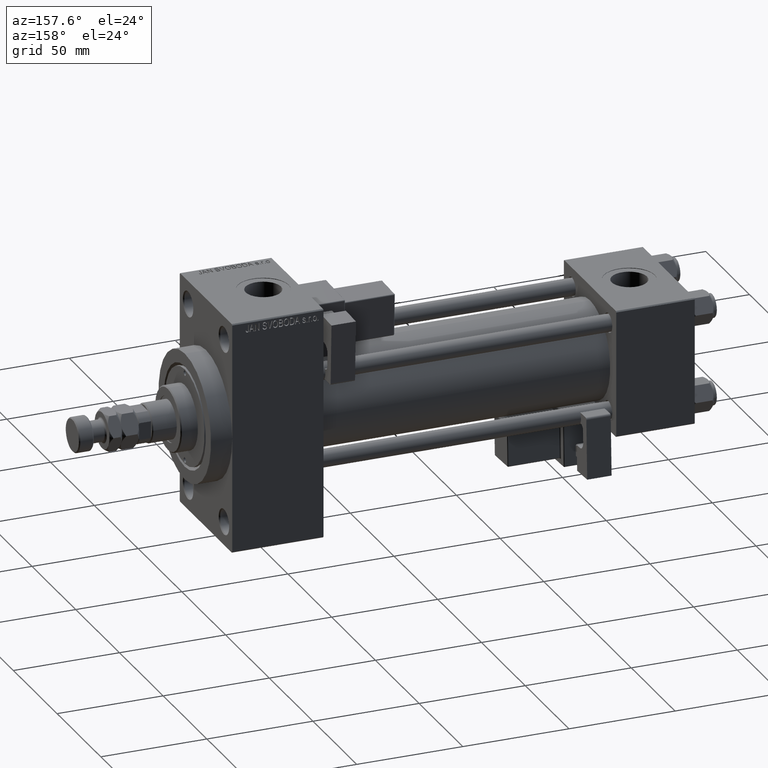
[diagram: clean part render]
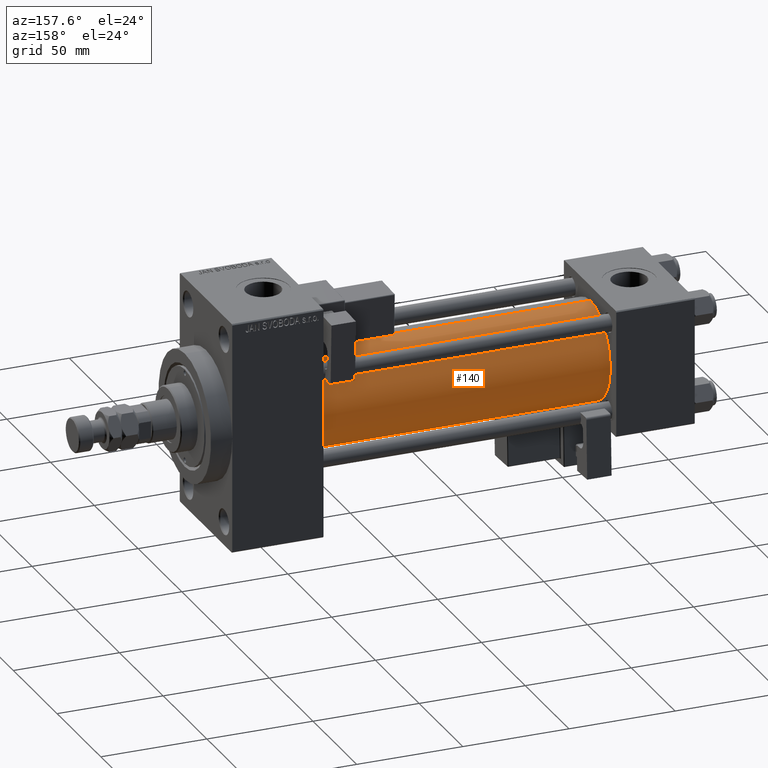
[diagram: same view with one face highlighted and labeled with its STEP entity id]
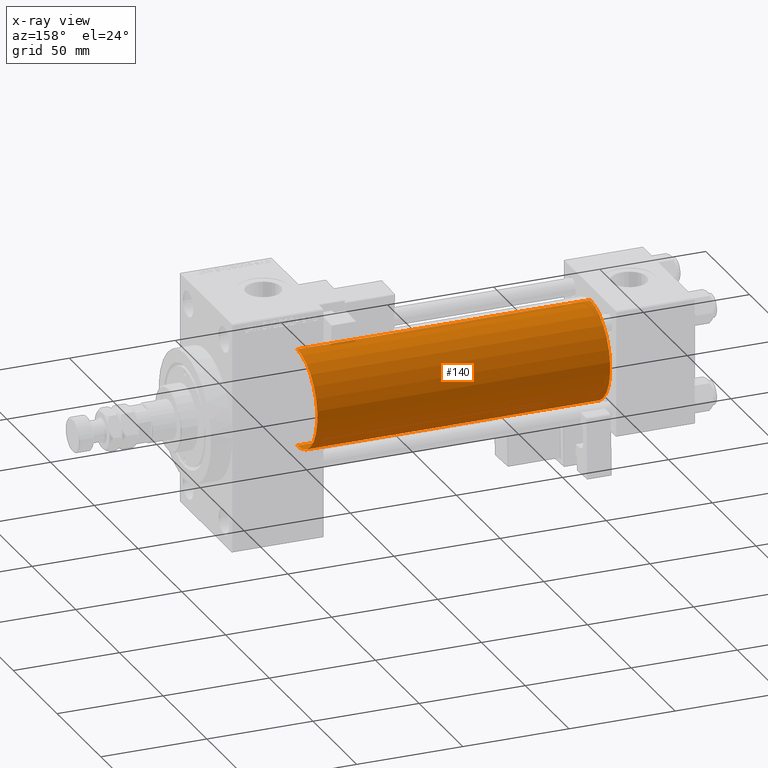
[diagram: x-ray of the same camera — body ghosted, the highlighted face saturated]
A machine part, auxiliary view. The second image highlights one B-rep face of the part: STEP entity #140.
The next image is the same camera in x-ray: the body ghosted, the highlighted face saturated — about 0% of this face is hidden behind the body in this view.
In plain terms, the highlighted cylindrical surface (partial cylindrical patch) has radius 23 mm, axis along (-1, -0, -0).
Its self-contained STEP definition (entity closure, byte-faithful):
#140 = ADVANCED_FACE ( 'NONE', ( #1338 ), #33481, .T. ) ;
#1070 = DIRECTION ( 'NONE',  ( 1.000000000000000000, -0.000000000000000000, 0.000000000000000000 ) ) ;
#1338 = FACE_OUTER_BOUND ( 'NONE', #37229, .T. ) ;
#1544 = AXIS2_PLACEMENT_3D ( 'NONE', #49313, #25456, #16912 ) ;
#2052 = ORIENTED_EDGE ( 'NONE', *, *, #3572, .T. ) ;
#2957 = CARTESIAN_POINT ( 'NONE',  ( 175.0000000000000284, 2.146024240737016609E-16, -23.00000000000000000 ) ) ;
#3572 = EDGE_CURVE ( 'NONE', #50023, #18628, #37240, .T. ) ;
#4857 = CARTESIAN_POINT ( 'NONE',  ( 37.00000000000000711, -2.602085213965210642E-15, 23.00000000000000000 ) ) ;
#9815 = DIRECTION ( 'NONE',  ( 0.000000000000000000, 0.000000000000000000, -1.000000000000000000 ) ) ;
#9831 = VECTOR ( 'NONE', #32445, 1000.000000000000000 ) ;
#10270 = DIRECTION ( 'NONE',  ( -1.000000000000000000, -0.000000000000000000, -0.000000000000000000 ) ) ;
#11702 = EDGE_CURVE ( 'NONE', #23365, #50023, #21927, .T. ) ;
#13746 = EDGE_CURVE ( 'NONE', #18752, #18628, #31683, .T. ) ;
#16912 = DIRECTION ( 'NONE',  ( 0.000000000000000000, 0.000000000000000000, 1.000000000000000000 ) ) ;
#18628 = VERTEX_POINT ( 'NONE', #4857 ) ;
#18752 = VERTEX_POINT ( 'NONE', #23489 ) ;
#20774 = DIRECTION ( 'NONE',  ( 1.000000000000000000, 0.000000000000000000, 0.000000000000000000 ) ) ;
#21526 = AXIS2_PLACEMENT_3D ( 'NONE', #33463, #1070, #36582 ) ;
#21927 = LINE ( 'NONE', #45785, #49506 ) ;
#23365 = VERTEX_POINT ( 'NONE', #2957 ) ;
#23393 = CARTESIAN_POINT ( 'NONE',  ( 175.0000000000000284, -2.602085213965210642E-15, 23.00000000000000000 ) ) ;
#23489 = CARTESIAN_POINT ( 'NONE',  ( 175.0000000000000284, -2.602085213965210642E-15, 23.00000000000000000 ) ) ;
#25456 = DIRECTION ( 'NONE',  ( -1.000000000000000000, -0.000000000000000000, -0.000000000000000000 ) ) ;
#25570 = ORIENTED_EDGE ( 'NONE', *, *, #37402, .F. ) ;
#26462 = CARTESIAN_POINT ( 'NONE',  ( 37.00000000000000711, 2.146024240737016609E-16, -23.00000000000000000 ) ) ;
#26542 = AXIS2_PLACEMENT_3D ( 'NONE', #45330, #20774, #9815 ) ;
#28325 = CIRCLE ( 'NONE', #26542, 23.00000000000000000 ) ;
#31683 = LINE ( 'NONE', #23393, #9831 ) ;
#32445 = DIRECTION ( 'NONE',  ( -1.000000000000000000, -0.000000000000000000, -0.000000000000000000 ) ) ;
#33463 = CARTESIAN_POINT ( 'NONE',  ( 37.00000000000000711, -2.602085213965210642E-15, 0.000000000000000000 ) ) ;
#33481 = CYLINDRICAL_SURFACE ( 'NONE', #1544, 23.00000000000000000 ) ;
#36582 = DIRECTION ( 'NONE',  ( 0.000000000000000000, 0.000000000000000000, 1.000000000000000000 ) ) ;
#37229 = EDGE_LOOP ( 'NONE', ( #25570, #43959, #2052, #43891 ) ) ;
#37240 = CIRCLE ( 'NONE', #21526, 23.00000000000000000 ) ;
#37402 = EDGE_CURVE ( 'NONE', #23365, #18752, #28325, .T. ) ;
#43891 = ORIENTED_EDGE ( 'NONE', *, *, #13746, .F. ) ;
#43959 = ORIENTED_EDGE ( 'NONE', *, *, #11702, .T. ) ;
#45330 = CARTESIAN_POINT ( 'NONE',  ( 175.0000000000000284, -2.602085213965210642E-15, 0.000000000000000000 ) ) ;
#45785 = CARTESIAN_POINT ( 'NONE',  ( 175.0000000000000284, 2.146024240737016609E-16, -23.00000000000000000 ) ) ;
#49313 = CARTESIAN_POINT ( 'NONE',  ( 175.0000000000000284, -2.602085213965210642E-15, 0.000000000000000000 ) ) ;
#49506 = VECTOR ( 'NONE', #10270, 1000.000000000000000 ) ;
#50023 = VERTEX_POINT ( 'NONE', #26462 ) ;